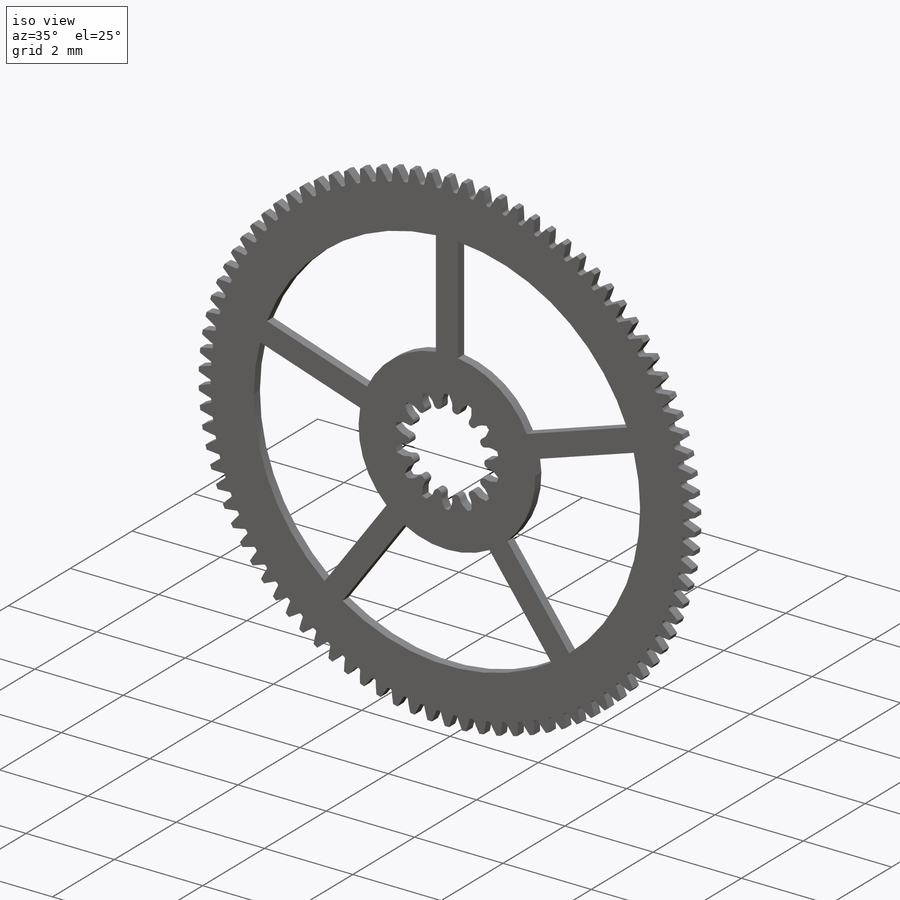
[diagram: iso view]
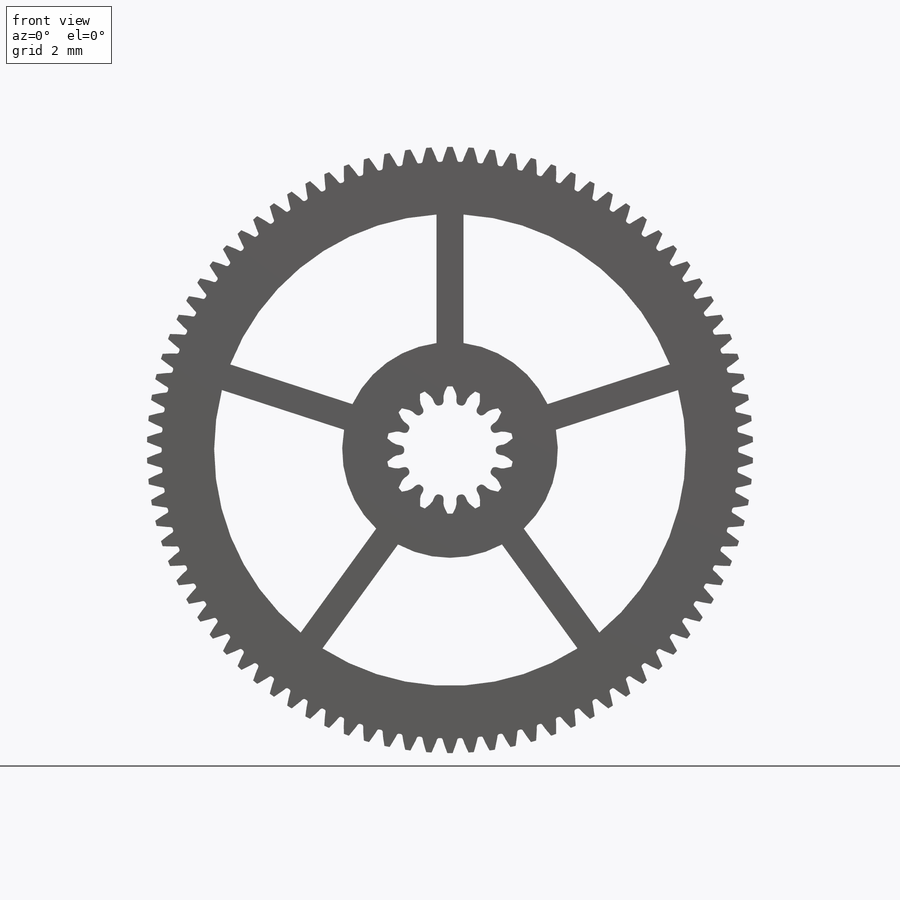
[diagram: front view]
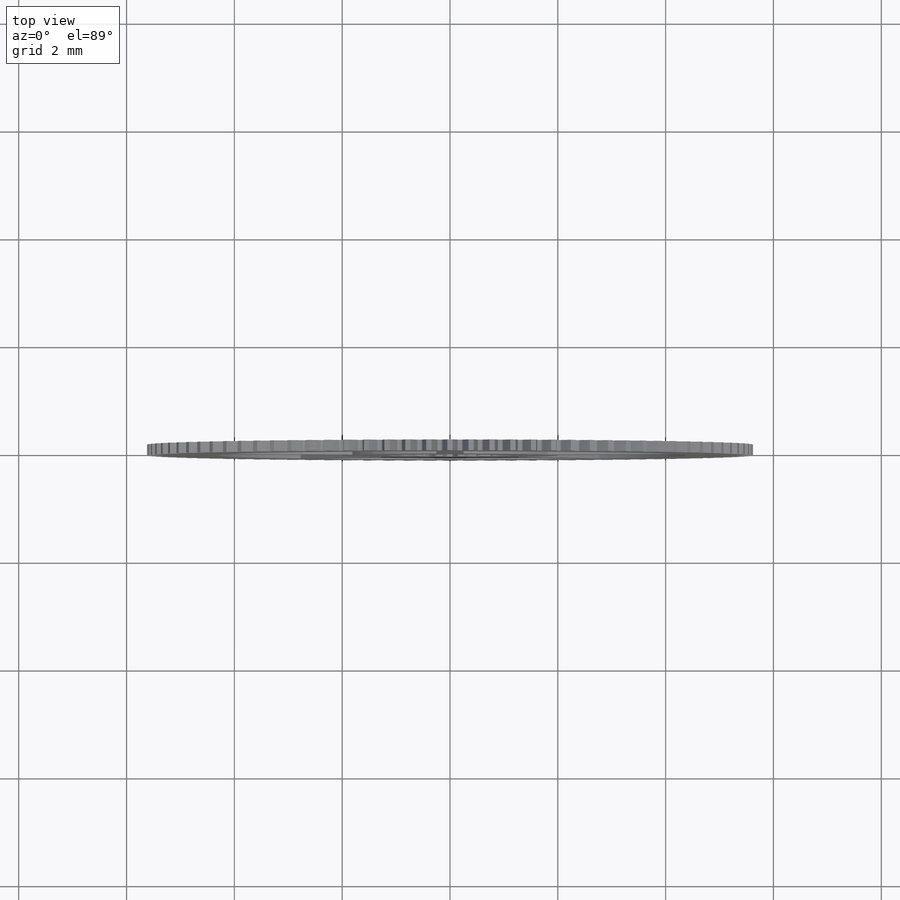
[diagram: top view]
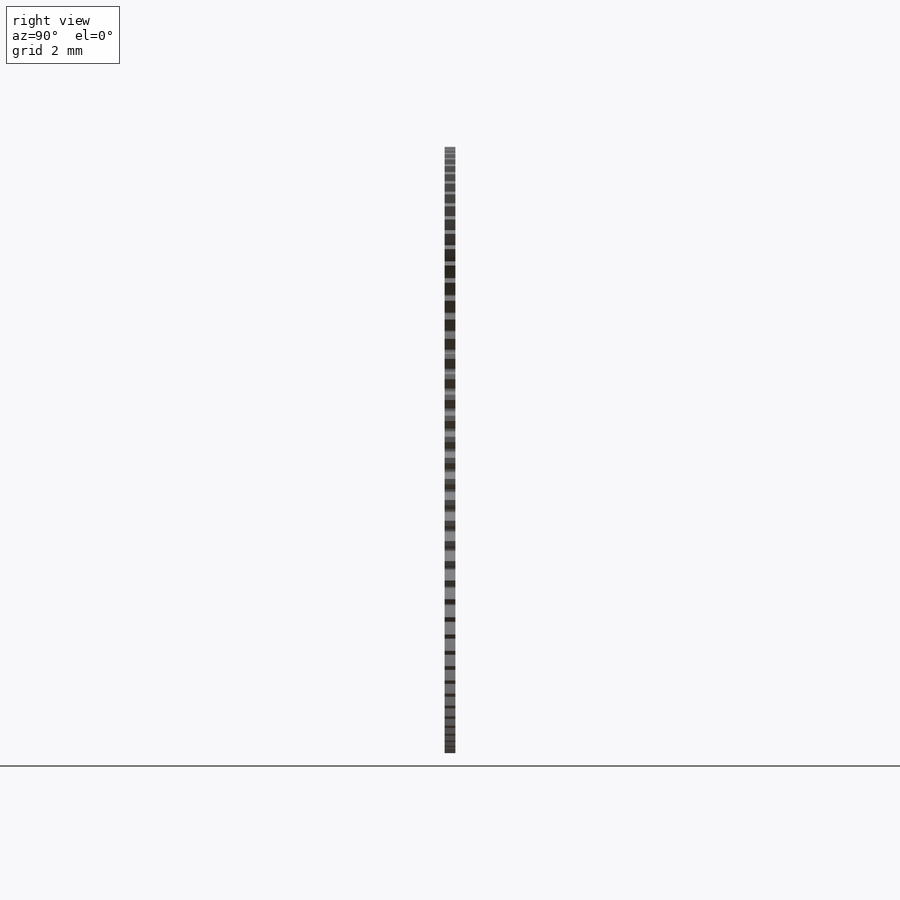
[diagram: right view]
SOLIDWORKS PART (.sldprt)
format: sldprt  version: not decoded by parser v0  size: 999,424 bytes
history: native  units: mm
features: sketch x4, plane x3, cut_extrude x2, material x1, revolve x1, pattern_circular x1 (+8 scaffold rows collapsed)
feature tree (20):
  scaffold x8  (default folders/planes/origin — collapsed)
  material  "Material <sin especificar>"
  plane  "Alzado"
  plane  "Planta"
  plane  "Vista lateral"
  sketch  "SketchRevolveEngranaje Fijo(11.2)"
  revolve  "Engranaje Fijo(11.2)"  Angle=360deg
  sketch  "SketchToothEngranaje Fijo(11.2)"
  cut_extrude  "ToothExtrudeCutEngranaje Fijo(11.2)"  Depth=0.1mm
  pattern_circular  "PatternEngranaje Fijo(11.2)"  Count=90 Angle=4deg
  sketch  "AuxiliarySketchEngranaje Fijo(11.2)"  dims[PitchDiameter=11.0mm BaseDiameter=~10.336619mm FormDiameter=~10.765932mm MajorDiameter=~11.244444mm MinorDiameter=~10.694444mm]
  sketch  "Croquis5"  dims[c1.D5=3.25mm c1.D6=1.25mm c1.D1=8.75mm c2.D5=2.0mm c2.D1=~4.168748mm c3.D1=72.0deg c3.D2=~3.533748mm c4.D2=72.0deg c4.D3=~3.060465mm c5.D3=72.0deg c5.D4=~3.964715mm c6.D4=72.0deg c7.D4=~2.260673mm c8.D4=72.0deg c9.D4=0.25mm c9.D2=~4.076819mm c10.D2=72.0deg c10.D3=~4.367851mm c11.D3=72.0deg c11.D4=~3.38672mm c12.D4=72.0deg c12.D7=~4.160872mm c13.D7=72.0deg c13.D8=0.25mm c13.D9=0.25mm c13.D10=0.25mm c13.D11=0.25mm c13.D12=0.25mm c13.D13=0.25mm c13.D14=0.25mm c13.D15=0.25mm c13.D16=0.5mm c13.D17=0.25mm c13.D2=0.25mm c13.D3=0.25mm c14.D8=0.25mm c14.D9=0.25mm]
  cut_extrude  "Cortar-Extruir2"  [1 undecoded]
decode coverage: 5 of 8 modeling features carry decoded parameters
note: ~ marks probable driven/reference dimensions
note: 1 parameter value undecoded
note: suppression state not decoded; provenance and decode notes live in map.json
